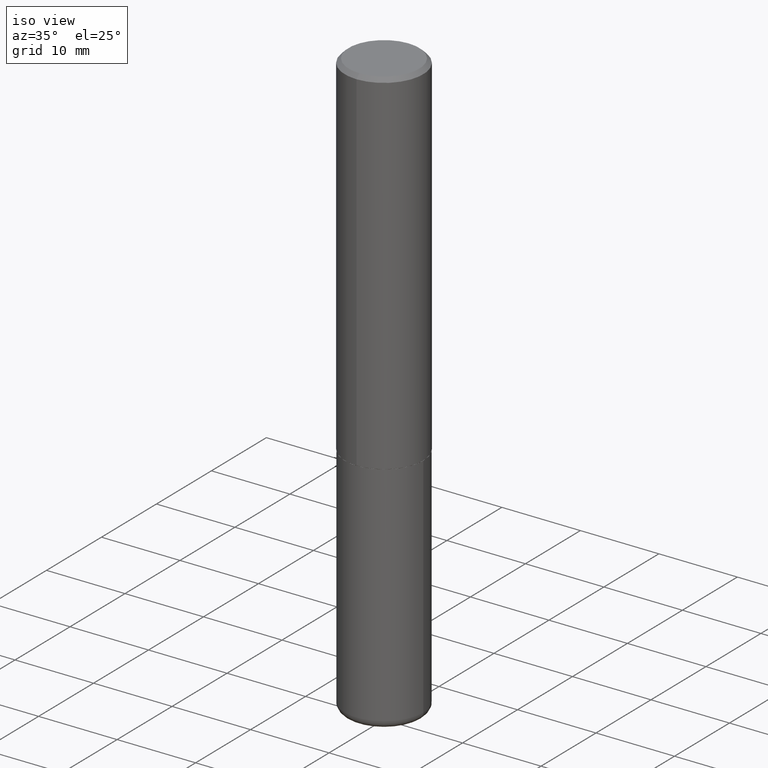
[diagram: clean part render]
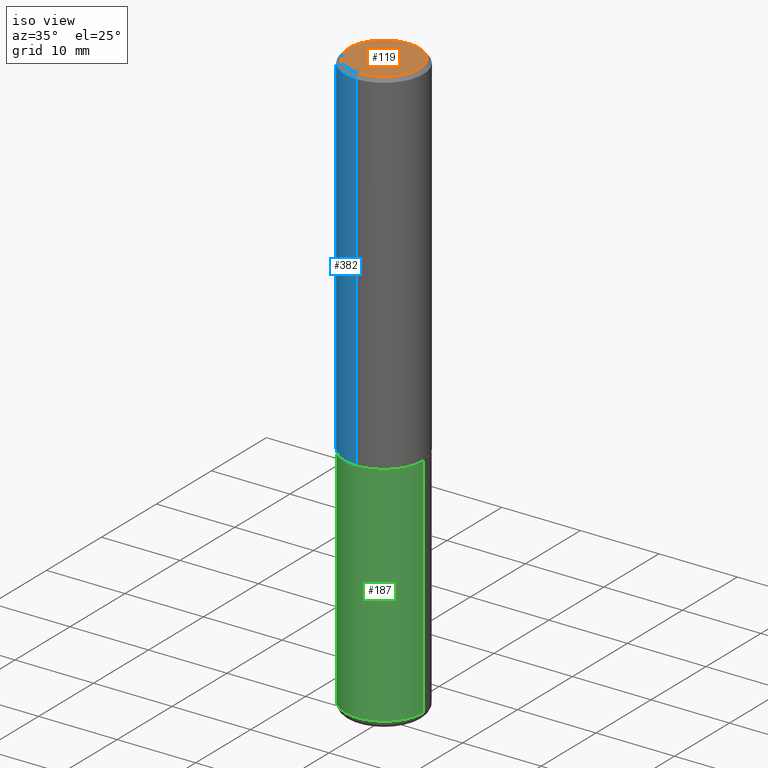
[diagram: same view with three faces highlighted in distinct colors, each labeled with its STEP entity id]
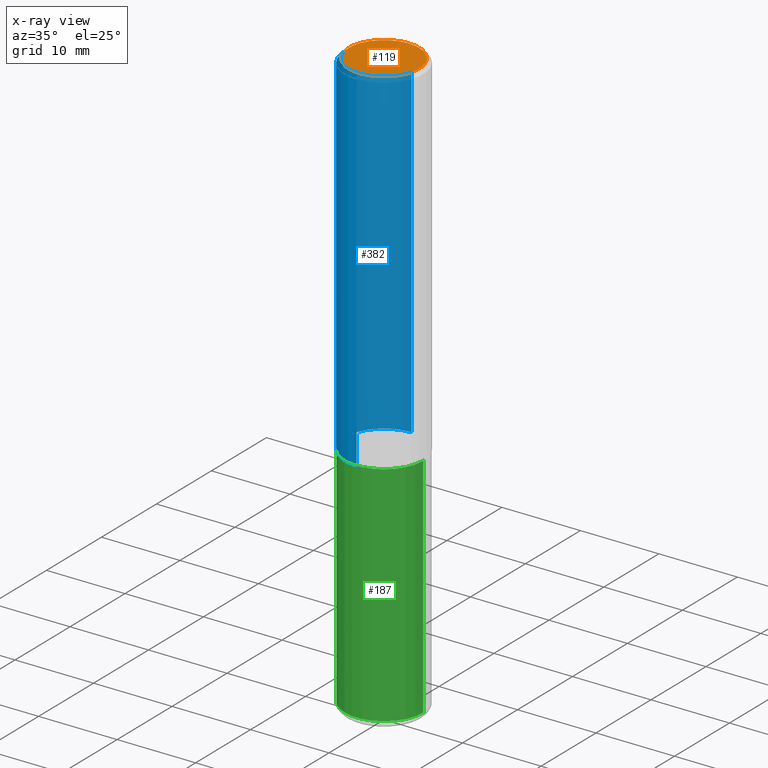
[diagram: x-ray of the same camera — body ghosted, the three highlighted faces saturated]
A machine part, iso view with three faces highlighted in distinct colors.
The next image is the same camera in x-ray (body ghosted, the three faces saturated) — at least one of them is partly hidden behind the body in this view.
Their STEP definitions:

[orange] entity #119 — the highlighted planar face has unit normal (0, -0, -1).
#28 = CIRCLE ( 'NONE', #365, 0.1768500000000002570 ) ;
#37 = DIRECTION ( 'NONE',  ( 6.982962677686265922E-15, 1.000000000000000000, -3.493627170871520561E-15 ) ) ;
#38 = CARTESIAN_POINT ( 'NONE',  ( 5.937032679118867305E-45, -8.486919012809721302E-31, -2.429257215415053213E-16 ) ) ;
#47 = AXIS2_PLACEMENT_3D ( 'NONE', #335, #68, #339 ) ;
#48 = VERTEX_POINT ( 'NONE', #92 ) ;
#55 = VERTEX_POINT ( 'NONE', #196 ) ;
#62 = CARTESIAN_POINT ( 'NONE',  ( 1.234936949548817970E-15, 0.1768500000000002570, -7.393108259393820014E-16 ) ) ;
#63 = DIRECTION ( 'NONE',  ( 2.443970379688463607E-29, -3.493627170871520561E-15, -1.000000000000000000 ) ) ;
#68 = DIRECTION ( 'NONE',  ( -2.443970379688463607E-29, 3.493627170871520955E-15, 1.000000000000000000 ) ) ;
#74 = DIRECTION ( 'NONE',  ( -6.982962677686265922E-15, -1.000000000000000000, 3.493627170871521350E-15 ) ) ;
#92 = CARTESIAN_POINT ( 'NONE',  ( 1.304766576325680085E-15, 0.1768500000000002570, -8.607736867101346867E-16 ) ) ;
#99 = CIRCLE ( 'NONE', #47, 0.1768500000000002570 ) ;
#109 = DIRECTION ( 'NONE',  ( -2.443970379688463607E-29, 3.493627170871520955E-15, 1.000000000000000000 ) ) ;
#119 = ADVANCED_FACE ( 'NONE', ( #296 ), #269, .F. ) ;
#134 = AXIS2_PLACEMENT_3D ( 'NONE', #62, #63, #37 ) ;
#196 = CARTESIAN_POINT ( 'NONE',  ( -1.281884050883611478E-15, -0.1768500000000002570, 3.749222436271242413E-16 ) ) ;
#269 = PLANE ( 'NONE',  #134 ) ;
#277 = EDGE_LOOP ( 'NONE', ( #309, #394 ) ) ;
#296 = FACE_OUTER_BOUND ( 'NONE', #277, .T. ) ;
#309 = ORIENTED_EDGE ( 'NONE', *, *, #330, .T. ) ;
#323 = EDGE_CURVE ( 'NONE', #55, #48, #99, .T. ) ;
#330 = EDGE_CURVE ( 'NONE', #48, #55, #28, .T. ) ;
#335 = CARTESIAN_POINT ( 'NONE',  ( 5.937032679118867305E-45, -8.486919012809721302E-31, -2.429257215415053213E-16 ) ) ;
#339 = DIRECTION ( 'NONE',  ( -6.982962677686265922E-15, -1.000000000000000000, 3.493627170871521350E-15 ) ) ;
#365 = AXIS2_PLACEMENT_3D ( 'NONE', #38, #109, #74 ) ;
#394 = ORIENTED_EDGE ( 'NONE', *, *, #323, .T. ) ;

[blue] entity #382 — the highlighted cylindrical surface (partial cylindrical patch) has radius 5 mm, axis along (-0, 0, 1).
#15 = VECTOR ( 'NONE', #142, 39.37007874015748143 ) ;
#19 = EDGE_CURVE ( 'NONE', #84, #118, #161, .T. ) ;
#26 = DIRECTION ( 'NONE',  ( -6.982962677686265133E-15, -1.000000000000000000, 3.491137977679279029E-15 ) ) ;
#51 = EDGE_CURVE ( 'NONE', #118, #110, #169, .T. ) ;
#53 = VECTOR ( 'NONE', #190, 39.37007874015748143 ) ;
#58 = CARTESIAN_POINT ( 'NONE',  ( 1.398703375343757985E-15, 0.1968500000000001360, -6.877205085860593881E-16 ) ) ;
#66 = DIRECTION ( 'NONE',  ( -6.982962677686265922E-15, -1.000000000000000000, 4.163344669033670112E-15 ) ) ;
#84 = VERTEX_POINT ( 'NONE', #324 ) ;
#90 = AXIS2_PLACEMENT_3D ( 'NONE', #183, #171, #66 ) ;
#104 = CYLINDRICAL_SURFACE ( 'NONE', #115, 0.1968500000000001360 ) ;
#108 = VERTEX_POINT ( 'NONE', #157 ) ;
#110 = VERTEX_POINT ( 'NONE', #120 ) ;
#115 = AXIS2_PLACEMENT_3D ( 'NONE', #241, #245, #367 ) ;
#118 = VERTEX_POINT ( 'NONE', #380 ) ;
#120 = CARTESIAN_POINT ( 'NONE',  ( -1.350489030861325626E-15, -0.1968500000000001082, -0.01999999999999935510 ) ) ;
#123 = CARTESIAN_POINT ( 'NONE',  ( 4.887940759376938213E-31, -6.987254341743056504E-17, -0.02000000000000004205 ) ) ;
#142 = DIRECTION ( 'NONE',  ( -2.443970379688463326E-29, 3.493627170871520561E-15, 1.000000000000000000 ) ) ;
#152 = ORIENTED_EDGE ( 'NONE', *, *, #51, .F. ) ;
#157 = CARTESIAN_POINT ( 'NONE',  ( -1.374596203102499996E-15, -0.1968500000000064365, -1.770699999999998608 ) ) ;
#161 = LINE ( 'NONE', #58, #53 ) ;
#169 = CIRCLE ( 'NONE', #226, 0.1968500000000000527 ) ;
#171 = DIRECTION ( 'NONE',  ( -2.443970379688463607E-29, 3.493627170871520955E-15, 1.000000000000000000 ) ) ;
#183 = CARTESIAN_POINT ( 'NONE',  ( 4.327538351314362007E-29, -6.186165631462201115E-15, -1.770699999999999497 ) ) ;
#190 = DIRECTION ( 'NONE',  ( -2.443970379688463326E-29, 3.493627170871520561E-15, 1.000000000000000000 ) ) ;
#203 = LINE ( 'NONE', #391, #15 ) ;
#212 = ORIENTED_EDGE ( 'NONE', *, *, #283, .T. ) ;
#226 = AXIS2_PLACEMENT_3D ( 'NONE', #123, #320, #26 ) ;
#232 = CIRCLE ( 'NONE', #90, 0.1968500000000002470 ) ;
#241 = CARTESIAN_POINT ( 'NONE',  ( 0.000000000000000000, 0.000000000000000000, 0.000000000000000000 ) ) ;
#245 = DIRECTION ( 'NONE',  ( -2.443970379688463607E-29, 3.493627170871520955E-15, 1.000000000000000000 ) ) ;
#251 = EDGE_LOOP ( 'NONE', ( #372, #212, #390, #152 ) ) ;
#283 = EDGE_CURVE ( 'NONE', #84, #108, #232, .T. ) ;
#299 = EDGE_CURVE ( 'NONE', #108, #110, #203, .T. ) ;
#320 = DIRECTION ( 'NONE',  ( -2.443970379688463607E-29, 3.493627170871520955E-15, 1.000000000000000000 ) ) ;
#324 = CARTESIAN_POINT ( 'NONE',  ( 1.398703375343780073E-15, 0.1968499999999940575, -1.770700000000000385 ) ) ;
#367 = DIRECTION ( 'NONE',  ( -6.982962677686265922E-15, -1.000000000000000000, 3.493627170871520955E-15 ) ) ;
#372 = ORIENTED_EDGE ( 'NONE', *, *, #19, .F. ) ;
#380 = CARTESIAN_POINT ( 'NONE',  ( 1.374596203102542200E-15, 0.1968499999999999694, -0.02000000000000072900 ) ) ;
#382 = ADVANCED_FACE ( 'NONE', ( #397 ), #104, .T. ) ;
#390 = ORIENTED_EDGE ( 'NONE', *, *, #299, .T. ) ;
#391 = CARTESIAN_POINT ( 'NONE',  ( -1.374596203102542397E-15, -0.1968500000000001360, 6.877205085860593881E-16 ) ) ;
#397 = FACE_OUTER_BOUND ( 'NONE', #251, .T. ) ;

[green] entity #187 — the highlighted cylindrical surface (partial cylindrical patch) has radius 5 mm, axis along (-0, 0, 1).
#5 = DIRECTION ( 'NONE',  ( -2.445468806185136877E-29, 3.491481338843145188E-15, 1.000000000000000000 ) ) ;
#12 = CARTESIAN_POINT ( 'NONE',  ( 0.1968500000000000805, -1.154667793568816250E-14, -2.913399999999999768 ) ) ;
#21 = EDGE_LOOP ( 'NONE', ( #79, #150, #334, #408 ) ) ;
#31 = EDGE_CURVE ( 'NONE', #80, #180, #177, .T. ) ;
#34 = CARTESIAN_POINT ( 'NONE',  ( -0.1968500000000000527, 1.398703375343757590E-15, -9.682923725166785079E-30 ) ) ;
#71 = VECTOR ( 'NONE', #273, 39.37007874015748143 ) ;
#75 = DIRECTION ( 'NONE',  ( 1.000000000000000000, -6.982962677686266711E-15, 0.000000000000000000 ) ) ;
#79 = ORIENTED_EDGE ( 'NONE', *, *, #147, .F. ) ;
#80 = VERTEX_POINT ( 'NONE', #159 ) ;
#93 = LINE ( 'NONE', #34, #341 ) ;
#114 = CARTESIAN_POINT ( 'NONE',  ( 7.124628819939776708E-29, -1.017208173258561931E-14, -2.913399999999999768 ) ) ;
#121 = AXIS2_PLACEMENT_3D ( 'NONE', #114, #247, #75 ) ;
#130 = DIRECTION ( 'NONE',  ( -2.445468806185136597E-29, 3.491481338843145583E-15, 1.000000000000000000 ) ) ;
#133 = LINE ( 'NONE', #135, #71 ) ;
#135 = CARTESIAN_POINT ( 'NONE',  ( 0.1968500000000000527, -1.374596203102542003E-15, 9.598753983154302260E-30 ) ) ;
#147 = EDGE_CURVE ( 'NONE', #349, #80, #93, .T. ) ;
#150 = ORIENTED_EDGE ( 'NONE', *, *, #258, .T. ) ;
#159 = CARTESIAN_POINT ( 'NONE',  ( -0.1968500000000000250, -6.780266234963251621E-15, -1.771699999999999608 ) ) ;
#177 = CIRCLE ( 'NONE', #213, 0.1968500000000000250 ) ;
#180 = VERTEX_POINT ( 'NONE', #393 ) ;
#187 = ADVANCED_FACE ( 'NONE', ( #395 ), #294, .T. ) ;
#191 = EDGE_CURVE ( 'NONE', #362, #180, #133, .T. ) ;
#192 = CIRCLE ( 'NONE', #121, 0.1968500000000000527 ) ;
#199 = DIRECTION ( 'NONE',  ( 1.000000000000000000, -6.982962677686267499E-15, 0.000000000000000000 ) ) ;
#213 = AXIS2_PLACEMENT_3D ( 'NONE', #416, #221, #199 ) ;
#221 = DIRECTION ( 'NONE',  ( -2.445468806185136597E-29, 3.491481338843145583E-15, 1.000000000000000000 ) ) ;
#247 = DIRECTION ( 'NONE',  ( -2.445468806185136597E-29, 3.491481338843145583E-15, 1.000000000000000000 ) ) ;
#256 = AXIS2_PLACEMENT_3D ( 'NONE', #328, #130, #301 ) ;
#258 = EDGE_CURVE ( 'NONE', #349, #362, #192, .T. ) ;
#273 = DIRECTION ( 'NONE',  ( -2.445468806185136877E-29, 3.491481338843145188E-15, 1.000000000000000000 ) ) ;
#294 = CYLINDRICAL_SURFACE ( 'NONE', #256, 0.1968500000000000527 ) ;
#301 = DIRECTION ( 'NONE',  ( 1.000000000000000000, -6.982962677686266711E-15, 4.876176775795935793E-29 ) ) ;
#328 = CARTESIAN_POINT ( 'NONE',  ( 0.000000000000000000, 0.000000000000000000, 0.000000000000000000 ) ) ;
#334 = ORIENTED_EDGE ( 'NONE', *, *, #191, .T. ) ;
#341 = VECTOR ( 'NONE', #5, 39.37007874015748143 ) ;
#349 = VERTEX_POINT ( 'NONE', #400 ) ;
#362 = VERTEX_POINT ( 'NONE', #12 ) ;
#393 = CARTESIAN_POINT ( 'NONE',  ( 0.1968500000000000250, -7.560453691130941112E-15, -1.771699999999999608 ) ) ;
#395 = FACE_OUTER_BOUND ( 'NONE', #21, .T. ) ;
#400 = CARTESIAN_POINT ( 'NONE',  ( -0.1968500000000000805, -8.773378357241862315E-15, -2.913399999999999768 ) ) ;
#408 = ORIENTED_EDGE ( 'NONE', *, *, #31, .F. ) ;
#416 = CARTESIAN_POINT ( 'NONE',  ( 4.332637083918205306E-29, -6.185857488028398715E-15, -1.771699999999999608 ) ) ;